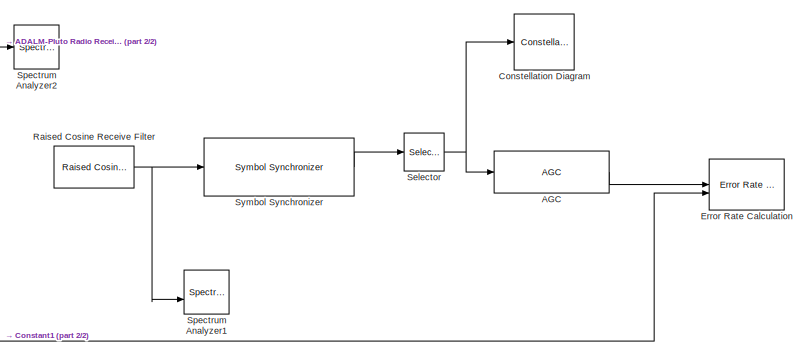
[diagram: root canvas - part 1/2, right side, full height]
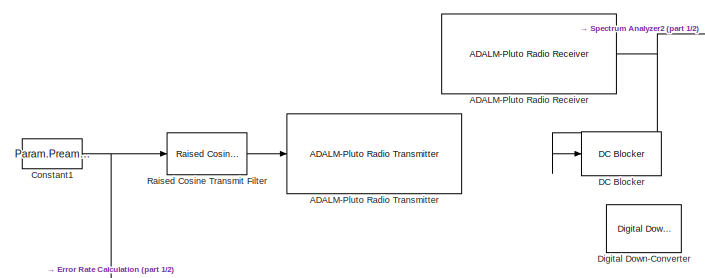
[diagram: root canvas - part 2/2, middle left region]
MODEL slx_ae858944e7e9
KIND model
CONFIG AbsTol = auto
CONFIG EnableMultiTasking = off
CONFIG FixedStep = 1/Param.Fs
CONFIG MaxStep = auto
CONFIG MinStep = auto
CONFIG RelTol = 1e-3
CONFIG SampleTimeConstraint = Unconstrained
CONFIG SolverName = FixedStepAuto
CONFIG StartTime = 0.0
CONFIG StopTime = inf
BLOCK [Reference] ADALM-Pluto Radio Receiver  REF=plutoradiolib/ADALM-Pluto Radio
Receiver
  SourceBlock = plutoradiolib/ADALM-Pluto Radio\nReceiver
  SourceType = comm.SDRRxPluto
BLOCK [Reference] ADALM-Pluto Radio Transmitter  REF=plutoradiolib/ADALM-Pluto Radio
Transmitter
  SourceBlock = plutoradiolib/ADALM-Pluto Radio\nTransmitter
  SourceType = comm.SDRTxPluto
BLOCK [Reference] AGC  REF=commrfcorlib/AGC
  SourceBlock = commrfcorlib/AGC
  SourceType = AGC
BLOCK [Constant] Constant1
  Value = Param.Preambles.LSFSymbol
  VectorParams1D = off
BLOCK [ConstellationDiagram] Constellation Diagram
  GraphicalSettings = {"GraphicalSettings":{"Style":{}}}
  ScopeFrameLocation = window
  Visible = on
  WasSavedAsWebScope = on
  WindowPosition = [328.000000,69.000000,600.000000,600.000000,]
BLOCK [Reference] DC Blocker  REF=dspsigops/DC Blocker
  LibrarySourceBlock = commhdlfilt/DC Blocker
  SourceBlock = dspsigops/DC Blocker
  SourceType = dsp.simulink.DCBlocker
BLOCK [Reference] Digital Down-Converter  REF=dspsigops/Digital
Down-Converter
  SourceBlock = dspsigops/Digital\nDown-Converter
  SourceType = dsp.simulink.DigitalDownConverter
BLOCK [Reference] Error Rate Calculation  REF=commsink2/Error Rate
Calculation
  SourceBlock = commsink2/Error Rate\nCalculation
  SourceType = Error Rate Calculation
BLOCK [Reference] Raised Cosine Receive Filter  REF=commfilt2/Raised Cosine
Receive Filter
  SourceBlock = commfilt2/Raised Cosine\nReceive Filter
  SourceType = Raised Cosine Receive Filter
BLOCK [Reference] Raised Cosine Transmit Filter  REF=commfilt2/Raised Cosine
Transmit Filter
  SourceBlock = commfilt2/Raised Cosine\nTransmit Filter
  SourceType = Raised Cosine Transmit Filter
BLOCK [Selector] Selector
  IndexOptions = Index vector (dialog)
  Indices = [1:192]
  OutputSizes = 1
BLOCK [SpectrumAnalyzer] Spectrum Analyzer1
  GraphicalSettings = {"GraphicalSettings":{"Style":{"BackgroundColor":[0.12941176470588237,0.12941176470588237,0.12941176470588237],"AxesColor":[0.07058823529411765,0.07058823529411765,0.07058823529411765],"LabelsColor":[0.8509803921568627,0.8509803921568627,0.8509803921568627],"PreserveColors":false,"Visible":[true,true],"LineStyle":["-","-"],"LineWidth":[1.5,1.5],"BarWidth":[0.9,0.9],"LineColor":[[1,0.90980392156862...<+1087ch>
  NumInputPorts = 2
  OpenAtSimulationStart = off
  ScopeFrameLocation = window
  Span = 144000
  StartFrequency = -72000
  StopFrequency = 72000
  Visible = on
  WasSavedAsWebScope = on
  WindowInvariantSamplesPerUpdate = on
  WindowPosition = [-25.000000,77.000000,800.000000,576.000000,]
  YLimits = [-185.5160190185582,72.18608117144183]
BLOCK [SpectrumAnalyzer] Spectrum Analyzer2
  GraphicalSettings = {"GraphicalSettings":{"Style":{"BackgroundColor":[0.12941176470588237,0.12941176470588237,0.12941176470588237],"AxesColor":[0.07058823529411765,0.07058823529411765,0.07058823529411765],"LabelsColor":[0.8509803921568627,0.8509803921568627,0.8509803921568627],"PreserveColors":false,"Visible":[true],"LineStyle":["-"],"LineWidth":[1.5],"BarWidth":[0.9],"LineColor":[[1,0.9098039215686274,0.392156862745...<+999ch>
  OpenAtSimulationStart = off
  ScopeFrameLocation = window
  Span = 442368000
  StartFrequency = -221184000
  StopFrequency = 221184000
  Visible = on
  WasSavedAsWebScope = on
  WindowInvariantSamplesPerUpdate = on
  WindowPosition = [271.000000,80.000000,800.000000,576.000000,]
  YLimits = [-43.85961656823777,8.715932461762229]
BLOCK [Reference] Symbol Synchronizer  REF=commsync2/Symbol Synchronizer
  SourceBlock = commsync2/Symbol Synchronizer
  SourceType = Symbol Synchronizer
NET ADALM-Pluto Radio Receiver:1 -> DC Blocker:1, Spectrum Analyzer2:1
LINE AGC:1 -> Error Rate Calculation:1
NET Constant1:1 -> Error Rate Calculation:2, Raised Cosine Transmit Filter:1
NET Raised Cosine Receive Filter:1 -> Spectrum Analyzer1:2, Symbol Synchronizer:1
LINE Raised Cosine Transmit Filter:1 -> ADALM-Pluto Radio Transmitter:1
NET Selector:1 -> AGC:1, Constellation Diagram:1
LINE Symbol Synchronizer:1 -> Selector:1
note: NET lines group one-source signal fan-out (src -> all destinations, sorted); 1:1 wires keep LINE
